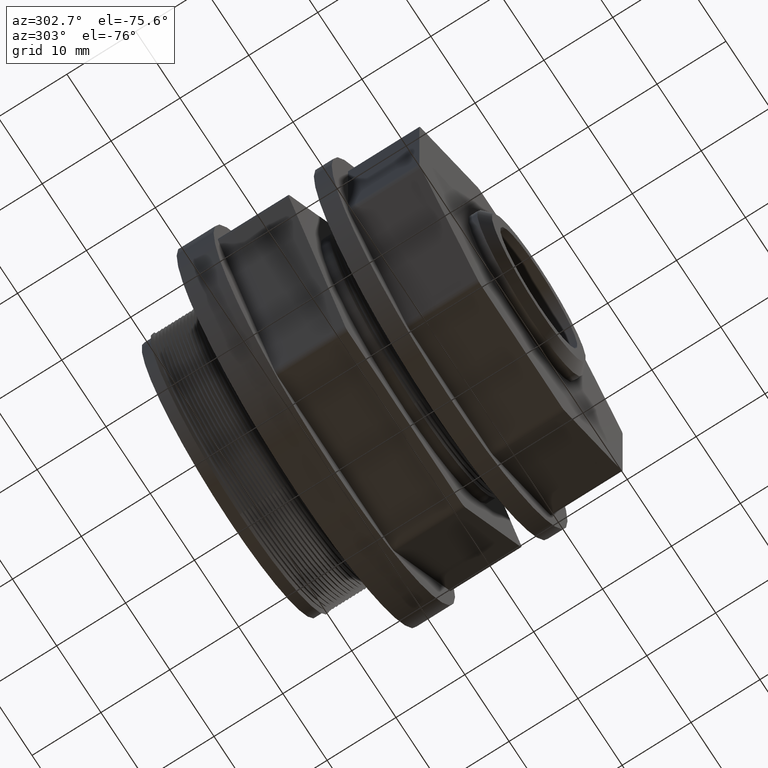
[diagram: clean part render]
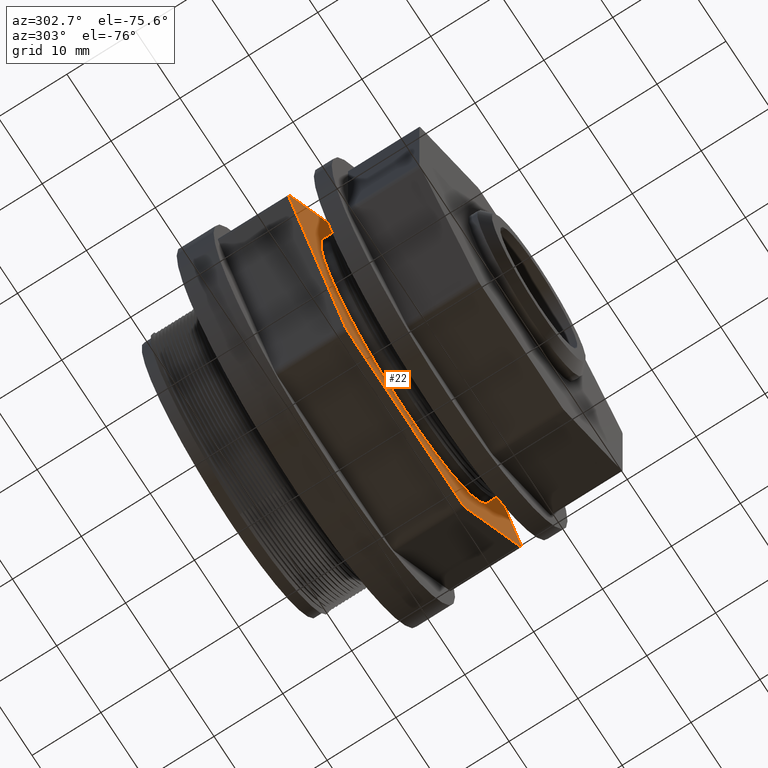
[diagram: same view with one face highlighted and labeled with its STEP entity id]
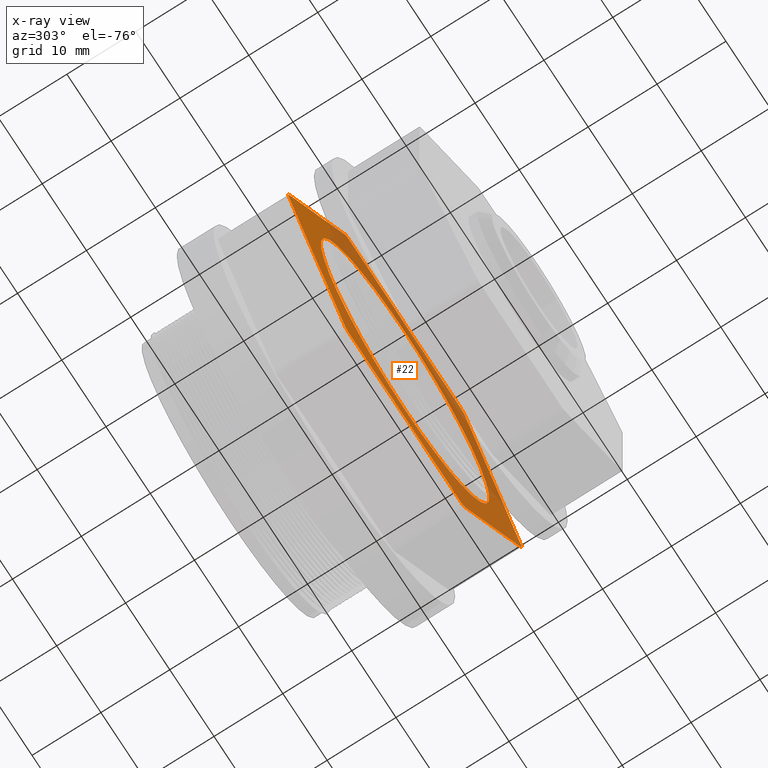
[diagram: x-ray of the same camera — body ghosted, the highlighted face saturated]
A machine part, auxiliary view. The second image highlights one B-rep face of the part: STEP entity #22.
The next image is the same camera in x-ray: the body ghosted, the highlighted face saturated — about 36% of this face is hidden behind the body in this view.
In plain terms, the highlighted planar face has unit normal (0, -1, 0).
Its self-contained STEP definition (entity closure, byte-faithful):
#18 = VERTEX_POINT ( 'NONE', #3330 ) ;
#21 = ORIENTED_EDGE ( 'NONE', *, *, #254, .T. ) ;
#22 = ADVANCED_FACE ( 'NONE', ( #3407, #3406 ), #3460, .T. ) ;
#23 = EDGE_LOOP ( 'NONE', ( #21, #304 ) ) ;
#225 = EDGE_CURVE ( 'NONE', #18, #325, #889, .T. ) ;
#226 = VERTEX_POINT ( 'NONE', #882 ) ;
#227 = EDGE_CURVE ( 'NONE', #311, #318, #754, .T. ) ;
#228 = ORIENTED_EDGE ( 'NONE', *, *, #225, .T. ) ;
#229 = ORIENTED_EDGE ( 'NONE', *, *, #317, .T. ) ;
#242 = VERTEX_POINT ( 'NONE', #725 ) ;
#252 = ORIENTED_EDGE ( 'NONE', *, *, #253, .T. ) ;
#253 = EDGE_CURVE ( 'NONE', #271, #18, #1075, .T. ) ;
#254 = EDGE_CURVE ( 'NONE', #255, #242, #1142, .T. ) ;
#255 = VERTEX_POINT ( 'NONE', #1032 ) ;
#265 = VERTEX_POINT ( 'NONE', #1293 ) ;
#266 = ORIENTED_EDGE ( 'NONE', *, *, #267, .T. ) ;
#267 = EDGE_CURVE ( 'NONE', #265, #268, #1316, .T. ) ;
#268 = VERTEX_POINT ( 'NONE', #1216 ) ;
#269 = ORIENTED_EDGE ( 'NONE', *, *, #270, .T. ) ;
#270 = EDGE_CURVE ( 'NONE', #268, #271, #1225, .T. ) ;
#271 = VERTEX_POINT ( 'NONE', #1303 ) ;
#304 = ORIENTED_EDGE ( 'NONE', *, *, #305, .T. ) ;
#305 = EDGE_CURVE ( 'NONE', #242, #255, #1390, .T. ) ;
#306 = EDGE_LOOP ( 'NONE', ( #307, #266, #269, #252, #228, #329, #319, #314, #229, #3068, #326, #3004 ) ) ;
#307 = ORIENTED_EDGE ( 'NONE', *, *, #308, .T. ) ;
#308 = EDGE_CURVE ( 'NONE', #309, #265, #1459, .T. ) ;
#309 = VERTEX_POINT ( 'NONE', #1498 ) ;
#311 = VERTEX_POINT ( 'NONE', #1344 ) ;
#314 = ORIENTED_EDGE ( 'NONE', *, *, #315, .T. ) ;
#315 = EDGE_CURVE ( 'NONE', #318, #316, #1452, .T. ) ;
#316 = VERTEX_POINT ( 'NONE', #1372 ) ;
#317 = EDGE_CURVE ( 'NONE', #316, #226, #1444, .T. ) ;
#318 = VERTEX_POINT ( 'NONE', #1507 ) ;
#319 = ORIENTED_EDGE ( 'NONE', *, *, #227, .T. ) ;
#324 = EDGE_CURVE ( 'NONE', #325, #311, #1431, .T. ) ;
#325 = VERTEX_POINT ( 'NONE', #1496 ) ;
#326 = ORIENTED_EDGE ( 'NONE', *, *, #327, .T. ) ;
#327 = EDGE_CURVE ( 'NONE', #3070, #328, #1515, .T. ) ;
#328 = VERTEX_POINT ( 'NONE', #1503 ) ;
#329 = ORIENTED_EDGE ( 'NONE', *, *, #324, .T. ) ;
#725 = CARTESIAN_POINT ( 'NONE',  ( 9.184850993605147200E-017, 0.7650000000000000100, -0.7499999999999998900 ) ) ;
#751 = DIRECTION ( 'NONE',  ( 1.000000000000000000, 0.0000000000000000000, -1.307099315906519800E-016 ) ) ;
#752 = VECTOR ( 'NONE', #751, 39.37007874015748100 ) ;
#753 = CARTESIAN_POINT ( 'NONE',  ( -0.5225019936166118700, 0.7650000000000000100, -0.9049999999999999200 ) ) ;
#754 = LINE ( 'NONE', #753, #752 ) ;
#882 = CARTESIAN_POINT ( 'NONE',  ( 1.030570230503482100, 0.7650000000000000100, -0.02500000000000000500 ) ) ;
#884 = DIRECTION ( 'NONE',  ( 0.4999999999999997200, 0.0000000000000000000, -0.8660254037844388200 ) ) ;
#886 = VECTOR ( 'NONE', #884, 39.37007874015748100 ) ;
#888 = CARTESIAN_POINT ( 'NONE',  ( -1.045003987233222900, 0.7650000000000000100, 2.724904641962645600E-016 ) ) ;
#889 = LINE ( 'NONE', #888, #886 ) ;
#1007 = DIRECTION ( 'NONE',  ( 0.0000000000000000000, -1.000000000000000000, 0.0000000000000000000 ) ) ;
#1008 = CARTESIAN_POINT ( 'NONE',  ( -0.9872689603142603700, 0.7650000000000000100, 4.097771990496394800E-016 ) ) ;
#1009 = AXIS2_PLACEMENT_3D ( 'NONE', #1008, #1007, #1145 ) ;
#1011 = CARTESIAN_POINT ( 'NONE',  ( 0.0000000000000000000, 0.7650000000000000100, 0.0000000000000000000 ) ) ;
#1032 = CARTESIAN_POINT ( 'NONE',  ( 0.0000000000000000000, 0.7650000000000000100, 0.7499999999999998900 ) ) ;
#1034 = DIRECTION ( 'NONE',  ( 0.0000000000000000000, 0.0000000000000000000, 1.000000000000000000 ) ) ;
#1036 = DIRECTION ( 'NONE',  ( -0.0000000000000000000, 1.000000000000000000, -0.0000000000000000000 ) ) ;
#1037 = AXIS2_PLACEMENT_3D ( 'NONE', #1011, #1036, #1034 ) ;
#1075 = CIRCLE ( 'NONE', #1009, 0.05000000000000000300 ) ;
#1142 = CIRCLE ( 'NONE', #1037, 0.7499999999999998900 ) ;
#1145 = DIRECTION ( 'NONE',  ( 0.0000000000000000000, 0.0000000000000000000, -1.000000000000000000 ) ) ;
#1216 = CARTESIAN_POINT ( 'NONE',  ( -0.5369357503463521000, 0.7650000000000000100, 0.8800000000000000000 ) ) ;
#1217 = DIRECTION ( 'NONE',  ( 0.0000000000000000000, 0.0000000000000000000, -1.000000000000000000 ) ) ;
#1218 = DIRECTION ( 'NONE',  ( 0.0000000000000000000, -1.000000000000000000, 0.0000000000000000000 ) ) ;
#1220 = CARTESIAN_POINT ( 'NONE',  ( -0.4936344801571302400, 0.7650000000000000100, 0.8549999999999999800 ) ) ;
#1224 = CARTESIAN_POINT ( 'NONE',  ( -0.5225019936166114300, 0.7650000000000000100, 0.9050000000000000300 ) ) ;
#1225 = LINE ( 'NONE', #1224, #1306 ) ;
#1293 = CARTESIAN_POINT ( 'NONE',  ( -0.4936344801571302400, 0.7650000000000000100, 0.9050000000000000300 ) ) ;
#1303 = CARTESIAN_POINT ( 'NONE',  ( -1.030570230503482300, 0.7650000000000000100, 0.02500000000000014400 ) ) ;
#1305 = DIRECTION ( 'NONE',  ( -0.5000000000000001100, 0.0000000000000000000, -0.8660254037844384900 ) ) ;
#1306 = VECTOR ( 'NONE', #1305, 39.37007874015748900 ) ;
#1315 = AXIS2_PLACEMENT_3D ( 'NONE', #1220, #1218, #1217 ) ;
#1316 = CIRCLE ( 'NONE', #1315, 0.05000000000000001000 ) ;
#1344 = CARTESIAN_POINT ( 'NONE',  ( -0.4936344801571305200, 0.7650000000000000100, -0.9049999999999999200 ) ) ;
#1372 = CARTESIAN_POINT ( 'NONE',  ( 0.5369357503463521000, 0.7650000000000000100, -0.8800000000000000000 ) ) ;
#1374 = CARTESIAN_POINT ( 'NONE',  ( 0.4936344801571300700, 0.7650000000000000100, -0.8549999999999999800 ) ) ;
#1375 = AXIS2_PLACEMENT_3D ( 'NONE', #1374, #1393, #1392 ) ;
#1387 = DIRECTION ( 'NONE',  ( 0.0000000000000000000, 0.0000000000000000000, 1.000000000000000000 ) ) ;
#1388 = DIRECTION ( 'NONE',  ( -0.0000000000000000000, 1.000000000000000000, -0.0000000000000000000 ) ) ;
#1390 = CIRCLE ( 'NONE', #1517, 0.7499999999999998900 ) ;
#1392 = DIRECTION ( 'NONE',  ( 0.0000000000000000000, 0.0000000000000000000, -1.000000000000000000 ) ) ;
#1393 = DIRECTION ( 'NONE',  ( 0.0000000000000000000, -1.000000000000000000, 0.0000000000000000000 ) ) ;
#1394 = DIRECTION ( 'NONE',  ( 0.0000000000000000000, 0.0000000000000000000, -1.000000000000000000 ) ) ;
#1395 = DIRECTION ( 'NONE',  ( 0.0000000000000000000, -1.000000000000000000, 0.0000000000000000000 ) ) ;
#1396 = AXIS2_PLACEMENT_3D ( 'NONE', #1525, #1395, #1394 ) ;
#1403 = DIRECTION ( 'NONE',  ( -1.000000000000000000, 0.0000000000000000000, 0.0000000000000000000 ) ) ;
#1405 = CARTESIAN_POINT ( 'NONE',  ( 0.5225019936166114300, 0.7650000000000000100, 0.9050000000000000300 ) ) ;
#1431 = CIRCLE ( 'NONE', #1396, 0.05000000000000001000 ) ;
#1440 = VECTOR ( 'NONE', #1403, 39.37007874015748100 ) ;
#1443 = CARTESIAN_POINT ( 'NONE',  ( 0.5225019936166114300, 0.7650000000000000100, -0.9050000000000000300 ) ) ;
#1444 = LINE ( 'NONE', #1443, #1509 ) ;
#1452 = CIRCLE ( 'NONE', #1375, 0.05000000000000001000 ) ;
#1459 = LINE ( 'NONE', #1405, #1440 ) ;
#1496 = CARTESIAN_POINT ( 'NONE',  ( -0.5369357503463524400, 0.7650000000000000100, -0.8799999999999998900 ) ) ;
#1498 = CARTESIAN_POINT ( 'NONE',  ( 0.4936344801571301800, 0.7650000000000000100, 0.9050000000000000300 ) ) ;
#1503 = CARTESIAN_POINT ( 'NONE',  ( 0.5369357503463519900, 0.7650000000000000100, 0.8800000000000000000 ) ) ;
#1507 = CARTESIAN_POINT ( 'NONE',  ( 0.4936344801571300700, 0.7650000000000000100, -0.9050000000000000300 ) ) ;
#1508 = DIRECTION ( 'NONE',  ( 0.4999999999999998300, 0.0000000000000000000, 0.8660254037844386000 ) ) ;
#1509 = VECTOR ( 'NONE', #1508, 39.37007874015748900 ) ;
#1512 = DIRECTION ( 'NONE',  ( -0.4999999999999998300, 0.0000000000000000000, 0.8660254037844388200 ) ) ;
#1513 = VECTOR ( 'NONE', #1512, 39.37007874015748100 ) ;
#1514 = CARTESIAN_POINT ( 'NONE',  ( 1.045003987233222600, 0.7650000000000000100, -1.106963910530206200E-016 ) ) ;
#1515 = LINE ( 'NONE', #1514, #1513 ) ;
#1516 = CARTESIAN_POINT ( 'NONE',  ( 0.0000000000000000000, 0.7650000000000000100, 0.0000000000000000000 ) ) ;
#1517 = AXIS2_PLACEMENT_3D ( 'NONE', #1516, #1388, #1387 ) ;
#1525 = CARTESIAN_POINT ( 'NONE',  ( -0.4936344801571305200, 0.7650000000000000100, -0.8549999999999999800 ) ) ;
#3004 = ORIENTED_EDGE ( 'NONE', *, *, #3071, .T. ) ;
#3068 = ORIENTED_EDGE ( 'NONE', *, *, #3069, .T. ) ;
#3069 = EDGE_CURVE ( 'NONE', #226, #3070, #3378, .T. ) ;
#3070 = VERTEX_POINT ( 'NONE', #3373 ) ;
#3071 = EDGE_CURVE ( 'NONE', #328, #309, #3372, .T. ) ;
#3330 = CARTESIAN_POINT ( 'NONE',  ( -1.030570230503482300, 0.7650000000000000100, -0.02499999999999962300 ) ) ;
#3368 = DIRECTION ( 'NONE',  ( 0.0000000000000000000, 0.0000000000000000000, -1.000000000000000000 ) ) ;
#3369 = DIRECTION ( 'NONE',  ( 0.0000000000000000000, -1.000000000000000000, 0.0000000000000000000 ) ) ;
#3370 = CARTESIAN_POINT ( 'NONE',  ( 0.4936344801571301800, 0.7650000000000000100, 0.8549999999999999800 ) ) ;
#3371 = AXIS2_PLACEMENT_3D ( 'NONE', #3370, #3369, #3368 ) ;
#3372 = CIRCLE ( 'NONE', #3371, 0.05000000000000001000 ) ;
#3373 = CARTESIAN_POINT ( 'NONE',  ( 1.030570230503481800, 0.7650000000000000100, 0.02500000000000002900 ) ) ;
#3374 = DIRECTION ( 'NONE',  ( 0.0000000000000000000, 0.0000000000000000000, -1.000000000000000000 ) ) ;
#3375 = DIRECTION ( 'NONE',  ( 0.0000000000000000000, -1.000000000000000000, 0.0000000000000000000 ) ) ;
#3376 = CARTESIAN_POINT ( 'NONE',  ( 0.9872689603142599200, 0.7650000000000000100, 0.0000000000000000000 ) ) ;
#3377 = AXIS2_PLACEMENT_3D ( 'NONE', #3376, #3375, #3374 ) ;
#3378 = CIRCLE ( 'NONE', #3377, 0.05000000000000000300 ) ;
#3405 = AXIS2_PLACEMENT_3D ( 'NONE', #3454, #3453, #3452 ) ;
#3406 = FACE_OUTER_BOUND ( 'NONE', #306, .T. ) ;
#3407 = FACE_BOUND ( 'NONE', #23, .T. ) ;
#3452 = DIRECTION ( 'NONE',  ( 0.0000000000000000000, -0.0000000000000000000, -1.000000000000000000 ) ) ;
#3453 = DIRECTION ( 'NONE',  ( 0.0000000000000000000, -1.000000000000000000, 0.0000000000000000000 ) ) ;
#3454 = CARTESIAN_POINT ( 'NONE',  ( -1.075000000000000000, 0.7650000000000000100, 0.0000000000000000000 ) ) ;
#3460 = PLANE ( 'NONE',  #3405 ) ;